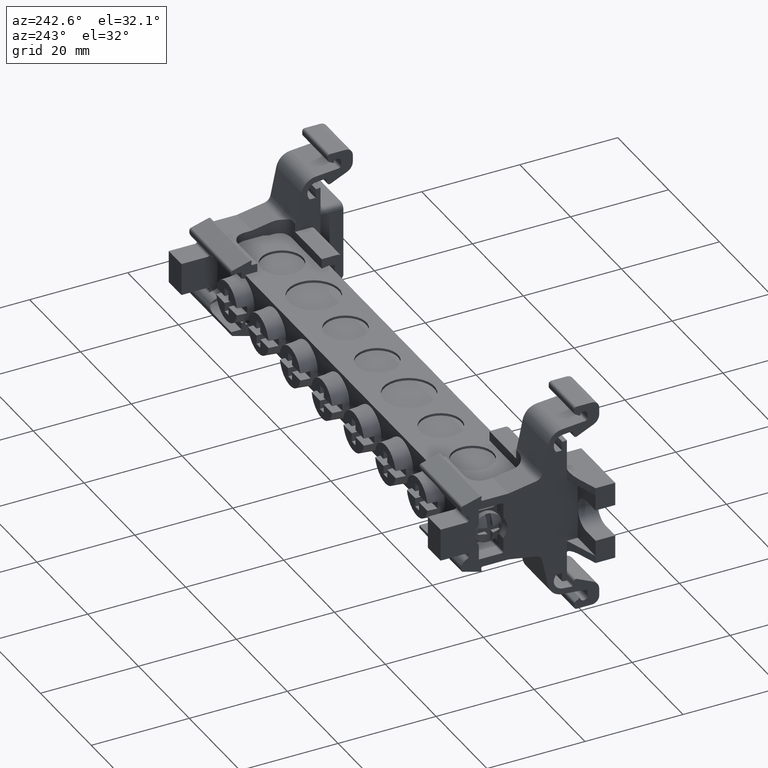
[diagram: clean part render]
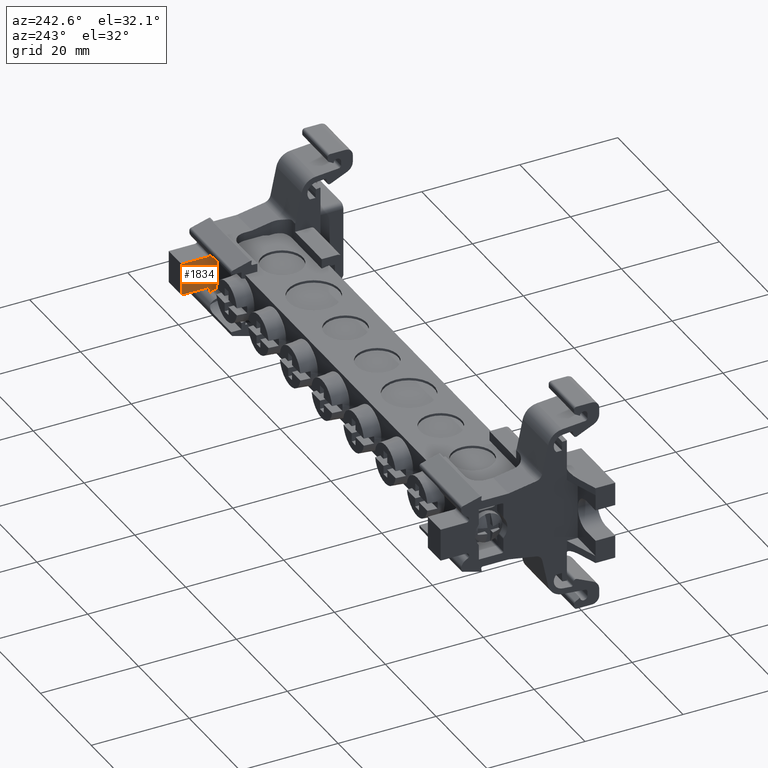
[diagram: same view with one face highlighted and labeled with its STEP entity id]
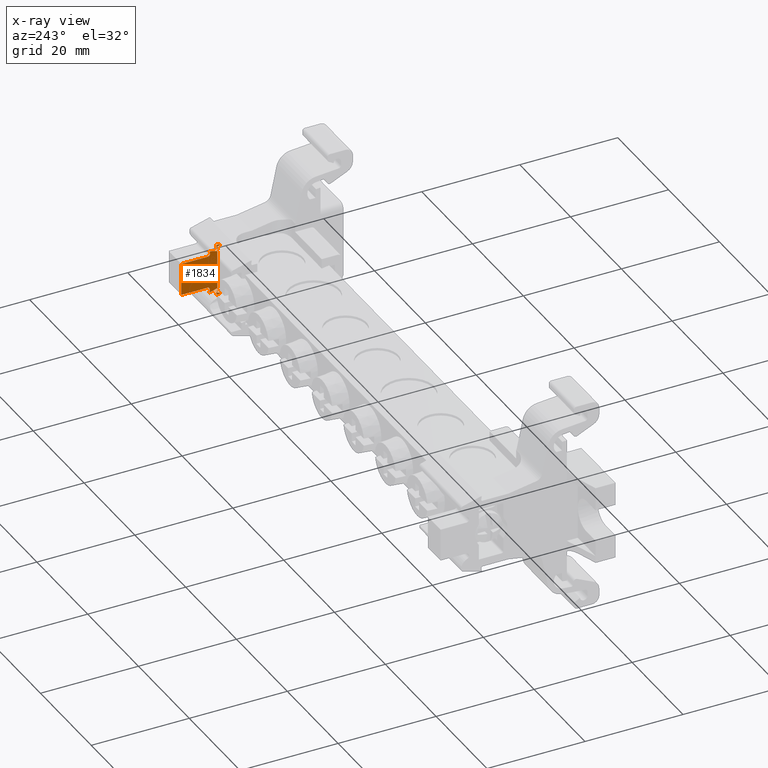
[diagram: x-ray of the same camera — body ghosted, the highlighted face saturated]
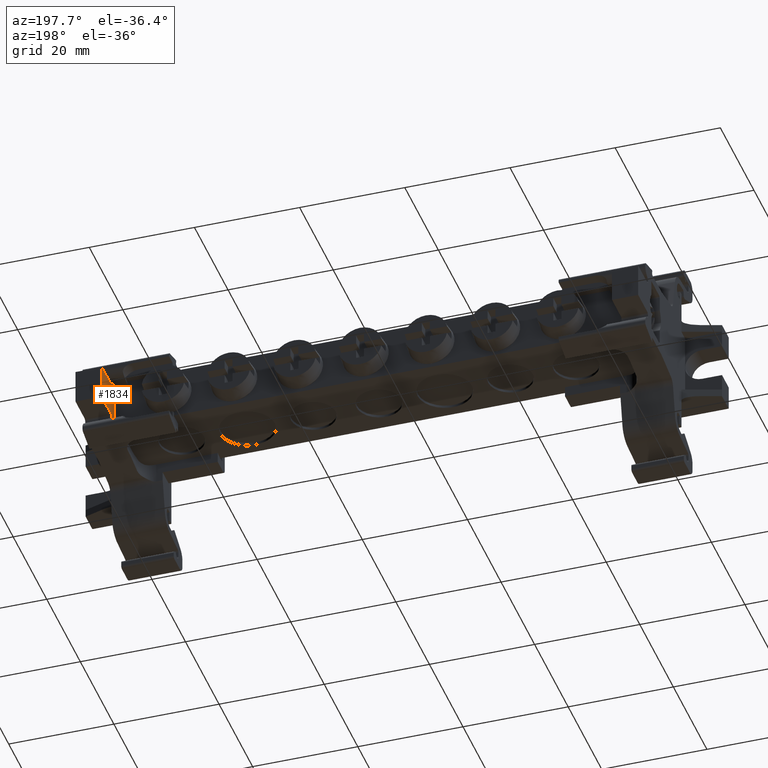
[diagram: same view with one face highlighted and labeled with its STEP entity id]
A machine part, auxiliary view. The second image highlights one B-rep face of the part: STEP entity #1834.
The next image is the same camera in x-ray: the body ghosted, the highlighted face saturated — about 0% of this face is hidden behind the body in this view.
A second angle (auxiliary view) of the same face is appended — the face is thin or edge-on in the first view.
In plain terms, the highlighted planar face has unit normal (-1, 0, -0).
Its self-contained STEP definition (entity closure, byte-faithful):
#8 = ORIENTED_EDGE ( 'NONE', *, *, #16091, .T. ) ;
#29 = ORIENTED_EDGE ( 'NONE', *, *, #15617, .T. ) ;
#30 = ORIENTED_EDGE ( 'NONE', *, *, #15684, .T. ) ;
#31 = ORIENTED_EDGE ( 'NONE', *, *, #15738, .F. ) ;
#32 = ORIENTED_EDGE ( 'NONE', *, *, #15988, .T. ) ;
#33 = ORIENTED_EDGE ( 'NONE', *, *, #16239, .F. ) ;
#38 = ORIENTED_EDGE ( 'NONE', *, *, #16112, .T. ) ;
#52 = ORIENTED_EDGE ( 'NONE', *, *, #16261, .F. ) ;
#53 = ORIENTED_EDGE ( 'NONE', *, *, #5288, .F. ) ;
#60 = ORIENTED_EDGE ( 'NONE', *, *, #16049, .T. ) ;
#61 = ORIENTED_EDGE ( 'NONE', *, *, #15916, .T. ) ;
#64 = ORIENTED_EDGE ( 'NONE', *, *, #7839, .F. ) ;
#65 = ORIENTED_EDGE ( 'NONE', *, *, #15941, .T. ) ;
#85 = ORIENTED_EDGE ( 'NONE', *, *, #1769, .T. ) ;
#92 = ORIENTED_EDGE ( 'NONE', *, *, #1951, .F. ) ;
#94 = ORIENTED_EDGE ( 'NONE', *, *, #1987, .F. ) ;
#95 = ORIENTED_EDGE ( 'NONE', *, *, #16065, .T. ) ;
#96 = ORIENTED_EDGE ( 'NONE', *, *, #15975, .T. ) ;
#104 = ORIENTED_EDGE ( 'NONE', *, *, #18571, .T. ) ;
#117 = ORIENTED_EDGE ( 'NONE', *, *, #18576, .T. ) ;
#118 = ORIENTED_EDGE ( 'NONE', *, *, #1741, .T. ) ;
#258 = AXIS2_PLACEMENT_3D ( 'NONE', #9246, #9212, #9252 ) ;
#352 = CIRCLE ( 'NONE', #369, 0.5000000000000004400 ) ;
#369 = AXIS2_PLACEMENT_3D ( 'NONE', #16446, #16426, #16413 ) ;
#420 = AXIS2_PLACEMENT_3D ( 'NONE', #16554, #16514, #16542 ) ;
#424 = CIRCLE ( 'NONE', #420, 0.5000000000000004400 ) ;
#432 = AXIS2_PLACEMENT_3D ( 'NONE', #16936, #16955, #16949 ) ;
#558 = CIRCLE ( 'NONE', #581, 2.000000000000001800 ) ;
#581 = AXIS2_PLACEMENT_3D ( 'NONE', #6048, #6054, #6053 ) ;
#655 = VECTOR ( 'NONE', #6148, 999.9999999999998900 ) ;
#1044 = CIRCLE ( 'NONE', #258, 2.000000000000001800 ) ;
#1741 = EDGE_CURVE ( 'NONE', #3039, #2836, #352, .T. ) ;
#1769 = EDGE_CURVE ( 'NONE', #2801, #3088, #424, .T. ) ;
#1834 = ADVANCED_FACE ( 'NONE', ( #16966 ), #16982, .T. ) ;
#1951 = EDGE_CURVE ( 'NONE', #2585, #3018, #558, .T. ) ;
#1987 = EDGE_CURVE ( 'NONE', #3078, #2632, #6137, .T. ) ;
#2582 = VERTEX_POINT ( 'NONE', #7097 ) ;
#2585 = VERTEX_POINT ( 'NONE', #7062 ) ;
#2632 = VERTEX_POINT ( 'NONE', #7085 ) ;
#2801 = VERTEX_POINT ( 'NONE', #8145 ) ;
#2836 = VERTEX_POINT ( 'NONE', #8142 ) ;
#3018 = VERTEX_POINT ( 'NONE', #8404 ) ;
#3039 = VERTEX_POINT ( 'NONE', #8378 ) ;
#3078 = VERTEX_POINT ( 'NONE', #8433 ) ;
#3088 = VERTEX_POINT ( 'NONE', #8473 ) ;
#3090 = VERTEX_POINT ( 'NONE', #8444 ) ;
#3102 = VERTEX_POINT ( 'NONE', #8463 ) ;
#3111 = VERTEX_POINT ( 'NONE', #8440 ) ;
#3165 = VERTEX_POINT ( 'NONE', #8495 ) ;
#3199 = VERTEX_POINT ( 'NONE', #8574 ) ;
#3206 = VERTEX_POINT ( 'NONE', #8553 ) ;
#3211 = VERTEX_POINT ( 'NONE', #8572 ) ;
#3212 = VERTEX_POINT ( 'NONE', #8569 ) ;
#3225 = VERTEX_POINT ( 'NONE', #8558 ) ;
#3231 = VERTEX_POINT ( 'NONE', #8582 ) ;
#3482 = VERTEX_POINT ( 'NONE', #8814 ) ;
#3502 = VERTEX_POINT ( 'NONE', #8855 ) ;
#3607 = VERTEX_POINT ( 'NONE', #8932 ) ;
#3978 = EDGE_LOOP ( 'NONE', ( #19203, #38, #8, #61, #95, #65, #64, #92, #30, #52, #85, #96, #32, #60, #118, #33, #29, #53, #31, #94, #104, #117 ) ) ;
#5288 = EDGE_CURVE ( 'NONE', #3482, #3502, #1044, .T. ) ;
#6048 = CARTESIAN_POINT ( 'NONE',  ( 40.04730230417598600, 63.53882648293326700, 44.42354422735452600 ) ) ;
#6053 = DIRECTION ( 'NONE',  ( 6.938893903907222100E-015, 1.000000000000000000, 2.081668171172166600E-014 ) ) ;
#6054 = DIRECTION ( 'NONE',  ( -1.000000000000000000, 7.897574987183420400E-015, -2.780833246023215000E-015 ) ) ;
#6133 = CARTESIAN_POINT ( 'NONE',  ( 40.04730230417603600, 62.51482648293306700, 33.55904998369311400 ) ) ;
#6137 = LINE ( 'NONE', #6133, #655 ) ;
#6148 = DIRECTION ( 'NONE',  ( -0.0000000000000000000, -0.1736481776670030200, 0.9848077530121953600 ) ) ;
#7062 = CARTESIAN_POINT ( 'NONE',  ( 40.04730230417600000, 64.24298665697077100, 42.55160447156657000 ) ) ;
#7085 = CARTESIAN_POINT ( 'NONE',  ( 40.04730230417601400, 62.41902670048018800, 34.10235754824123000 ) ) ;
#7097 = CARTESIAN_POINT ( 'NONE',  ( 40.04730230417600000, 63.91902670048021700, 42.08361953261959300 ) ) ;
#7839 = EDGE_CURVE ( 'NONE', #3018, #3102, #11599, .T. ) ;
#8142 = CARTESIAN_POINT ( 'NONE',  ( 40.04730230417605000, 63.91902670048021700, 34.26864998369332200 ) ) ;
#8145 = CARTESIAN_POINT ( 'NONE',  ( 40.04730230417600700, 63.91902670048021700, 41.88664998368990700 ) ) ;
#8378 = CARTESIAN_POINT ( 'NONE',  ( 40.04730230417605000, 64.41902670048013100, 34.76864998369365600 ) ) ;
#8404 = CARTESIAN_POINT ( 'NONE',  ( 40.04730230417600000, 64.05646457313778800, 42.49169257477618100 ) ) ;
#8433 = CARTESIAN_POINT ( 'NONE',  ( 40.04730230417603600, 62.65701656017648700, 32.75264998369322500 ) ) ;
#8440 = CARTESIAN_POINT ( 'NONE',  ( 40.04730230417602900, 61.91882648292986600, 32.75264998369307500 ) ) ;
#8444 = CARTESIAN_POINT ( 'NONE',  ( 40.04730230417569500, 61.91882648292984500, 33.07764998369308500 ) ) ;
#8463 = CARTESIAN_POINT ( 'NONE',  ( 40.04730230417596500, 62.41902670048016000, 42.05294241914198500 ) ) ;
#8473 = CARTESIAN_POINT ( 'NONE',  ( 40.04730230417600700, 64.41902670048017400, 41.38664998368982100 ) ) ;
#8495 = CARTESIAN_POINT ( 'NONE',  ( 40.04730230417602900, 69.74082521647748900, 34.76864998369400400 ) ) ;
#8553 = CARTESIAN_POINT ( 'NONE',  ( 40.04730230417575900, 61.91882648292984500, 43.07764998369307800 ) ) ;
#8558 = CARTESIAN_POINT ( 'NONE',  ( 40.04730230417595000, 62.41882648292838800, 43.07764998369307800 ) ) ;
#8569 = CARTESIAN_POINT ( 'NONE',  ( 40.04730230417595000, 62.65701656017640200, 43.40264998368984100 ) ) ;
#8572 = CARTESIAN_POINT ( 'NONE',  ( 40.04730230417594300, 61.91882648292978100, 43.40264998368984800 ) ) ;
#8574 = CARTESIAN_POINT ( 'NONE',  ( 40.04730230417600700, 69.74082521647748900, 41.38664998368942300 ) ) ;
#8582 = CARTESIAN_POINT ( 'NONE',  ( 40.04730230417598600, 62.41882648292838800, 33.07764998369308500 ) ) ;
#8814 = CARTESIAN_POINT ( 'NONE',  ( 40.04730230417603600, 64.05646457313777400, 33.66360739260702700 ) ) ;
#8855 = CARTESIAN_POINT ( 'NONE',  ( 40.04730230417605700, 64.24298665697080000, 33.60369549581661600 ) ) ;
#8932 = CARTESIAN_POINT ( 'NONE',  ( 40.04730230417605000, 63.91902670048021700, 34.07168043476360000 ) ) ;
#9212 = DIRECTION ( 'NONE',  ( -1.000000000000000000, 7.897574987183420400E-015, -4.241555170703030000E-015 ) ) ;
#9246 = CARTESIAN_POINT ( 'NONE',  ( 40.04730230417605700, 63.53882648293326700, 31.73175574002868500 ) ) ;
#9252 = DIRECTION ( 'NONE',  ( 6.938893903907222100E-015, 1.000000000000000000, 2.498001805406600200E-013 ) ) ;
#10311 = VECTOR ( 'NONE', #14676, 1000.000000000000000 ) ;
#10345 = VECTOR ( 'NONE', #14703, 1000.000000000000000 ) ;
#11599 = LINE ( 'NONE', #11626, #17959 ) ;
#11626 = CARTESIAN_POINT ( 'NONE',  ( 40.04730230417600000, 64.05646457313777400, 42.49169257477618100 ) ) ;
#11628 = DIRECTION ( 'NONE',  ( -0.0000000000000000000, -0.9659258262891364800, -0.2588190451022660500 ) ) ;
#12046 = DIRECTION ( 'NONE',  ( 1.000000000000000000, -7.897574987183420400E-015, 4.241555170703030000E-015 ) ) ;
#12050 = CARTESIAN_POINT ( 'NONE',  ( 40.04730230417605700, 64.41902670048016000, 34.07168043476357900 ) ) ;
#12051 = DIRECTION ( 'NONE',  ( 1.387778780781444400E-014, 1.000000000000000000, 0.0000000000000000000 ) ) ;
#12261 = CARTESIAN_POINT ( 'NONE',  ( 40.04730230417600000, 64.41902670048016000, 42.08361953261958600 ) ) ;
#12283 = DIRECTION ( 'NONE',  ( 1.000000000000000000, -7.897574987183420400E-015, 2.780833246023215000E-015 ) ) ;
#12285 = DIRECTION ( 'NONE',  ( 1.387778780781444400E-014, 1.000000000000000000, 0.0000000000000000000 ) ) ;
#12405 = LINE ( 'NONE', #12433, #18199 ) ;
#12425 = DIRECTION ( 'NONE',  ( -0.0000000000000000000, 0.9659258262891364800, -0.2588190451022660500 ) ) ;
#12433 = CARTESIAN_POINT ( 'NONE',  ( 40.04730230417601400, 64.05646457313777400, 33.66360739260702700 ) ) ;
#12919 = CARTESIAN_POINT ( 'NONE',  ( 40.04730230417599300, 62.41882648292838800, 33.07764998369308500 ) ) ;
#12923 = LINE ( 'NONE', #12919, #19262 ) ;
#12924 = DIRECTION ( 'NONE',  ( -7.897574987183420400E-015, -1.000000000000000000, 0.0000000000000000000 ) ) ;
#12926 = CARTESIAN_POINT ( 'NONE',  ( 40.04730230417603600, 70.57882648293222900, 34.76864998369400400 ) ) ;
#12933 = LINE ( 'NONE', #12926, #19235 ) ;
#12942 = DIRECTION ( 'NONE',  ( -0.0000000000000000000, -1.000000000000000000, -0.0000000000000000000 ) ) ;
#12963 = LINE ( 'NONE', #12974, #19230 ) ;
#12974 = CARTESIAN_POINT ( 'NONE',  ( 40.04730230417595000, 53.91882648293101700, 43.40264998368984800 ) ) ;
#12996 = DIRECTION ( 'NONE',  ( -3.999861650527207200E-044, 1.000000000000000000, 1.271406292971209800E-029 ) ) ;
#13135 = LINE ( 'NONE', #13146, #19277 ) ;
#13141 = DIRECTION ( 'NONE',  ( -7.897574987183420400E-015, -1.000000000000000000, 0.0000000000000000000 ) ) ;
#13146 = CARTESIAN_POINT ( 'NONE',  ( 40.04730230417600700, 70.57882648293222900, 43.07764998369307800 ) ) ;
#13156 = CARTESIAN_POINT ( 'NONE',  ( 40.04730230417599300, 62.41882648292838800, 43.07764998369307800 ) ) ;
#13184 = LINE ( 'NONE', #13156, #19309 ) ;
#13187 = DIRECTION ( 'NONE',  ( -0.0000000000000000000, 0.0000000000000000000, 1.000000000000000000 ) ) ;
#13529 = CARTESIAN_POINT ( 'NONE',  ( 40.04730230417596500, 61.91882648292983000, 36.75664998369448700 ) ) ;
#13560 = DIRECTION ( 'NONE',  ( -3.511194208363124900E-015, 2.772991955511190500E-029, 1.000000000000000000 ) ) ;
#13563 = LINE ( 'NONE', #13529, #18082 ) ;
#13576 = LINE ( 'NONE', #13593, #19601 ) ;
#13593 = CARTESIAN_POINT ( 'NONE',  ( 40.04730230417595000, 62.65701656017643000, 43.40264998369019600 ) ) ;
#13594 = DIRECTION ( 'NONE',  ( 0.0000000000000000000, -0.1736481776670367200, -0.9848077530121893700 ) ) ;
#13718 = CARTESIAN_POINT ( 'NONE',  ( 40.04730230417602100, 69.74082521647748900, 36.75664998369448700 ) ) ;
#13733 = LINE ( 'NONE', #13718, #19676 ) ;
#13740 = LINE ( 'NONE', #13747, #19604 ) ;
#13742 = DIRECTION ( 'NONE',  ( 7.897574987183420400E-015, 1.000000000000000000, -0.0000000000000000000 ) ) ;
#13747 = CARTESIAN_POINT ( 'NONE',  ( 40.04730230417601400, 70.57882648293222900, 41.38664998368974300 ) ) ;
#13761 = DIRECTION ( 'NONE',  ( 3.511194208363124900E-015, -2.772991955511190500E-029, -1.000000000000000000 ) ) ;
#14077 = DIRECTION ( 'NONE',  ( 2.447812761631542700E-043, 3.099448584665515300E-029, 1.000000000000000000 ) ) ;
#14097 = LINE ( 'NONE', #14100, #19463 ) ;
#14100 = CARTESIAN_POINT ( 'NONE',  ( 40.04730230417605000, 63.91902670048021700, 33.70043375959505700 ) ) ;
#14136 = DIRECTION ( 'NONE',  ( -2.471836676931409200E-043, -3.129867941669220200E-029, 1.000000000000000000 ) ) ;
#14144 = LINE ( 'NONE', #14150, #19450 ) ;
#14150 = CARTESIAN_POINT ( 'NONE',  ( 40.04730230417600700, 63.91902670048021700, 42.45486620778815700 ) ) ;
#14676 = DIRECTION ( 'NONE',  ( -2.630884200987044000E-043, -1.000000000000000000, 6.786970846989881900E-029 ) ) ;
#14690 = LINE ( 'NONE', #14701, #10345 ) ;
#14695 = LINE ( 'NONE', #14716, #10311 ) ;
#14701 = CARTESIAN_POINT ( 'NONE',  ( 40.04730230417602100, 61.91882648292985900, 32.75264998369295500 ) ) ;
#14703 = DIRECTION ( 'NONE',  ( 1.429276196835897900E-043, 1.809765908086214800E-029, 1.000000000000000000 ) ) ;
#14716 = CARTESIAN_POINT ( 'NONE',  ( 40.04730230417603600, 53.91882648293101700, 32.75264998369336700 ) ) ;
#15617 = EDGE_CURVE ( 'NONE', #3607, #3502, #18087, .T. ) ;
#15684 = EDGE_CURVE ( 'NONE', #2585, #2582, #18192, .T. ) ;
#15738 = EDGE_CURVE ( 'NONE', #2632, #3482, #12405, .T. ) ;
#15916 = EDGE_CURVE ( 'NONE', #3206, #3211, #13563, .T. ) ;
#15941 = EDGE_CURVE ( 'NONE', #3212, #3102, #13576, .T. ) ;
#15975 = EDGE_CURVE ( 'NONE', #3088, #3199, #13740, .T. ) ;
#15988 = EDGE_CURVE ( 'NONE', #3199, #3165, #13733, .T. ) ;
#16047 = EDGE_CURVE ( 'NONE', #3231, #3090, #12923, .T. ) ;
#16049 = EDGE_CURVE ( 'NONE', #3165, #3039, #12933, .T. ) ;
#16065 = EDGE_CURVE ( 'NONE', #3211, #3212, #12963, .T. ) ;
#16091 = EDGE_CURVE ( 'NONE', #3225, #3206, #13135, .T. ) ;
#16112 = EDGE_CURVE ( 'NONE', #3231, #3225, #13184, .T. ) ;
#16239 = EDGE_CURVE ( 'NONE', #3607, #2836, #14097, .T. ) ;
#16261 = EDGE_CURVE ( 'NONE', #2801, #2582, #14144, .T. ) ;
#16413 = DIRECTION ( 'NONE',  ( 1.387778780781444400E-014, 1.000000000000000000, 0.0000000000000000000 ) ) ;
#16426 = DIRECTION ( 'NONE',  ( 1.000000000000000000, -7.897574987183420400E-015, 4.229249905219660500E-015 ) ) ;
#16446 = CARTESIAN_POINT ( 'NONE',  ( 40.04730230417605000, 64.41902670048021700, 34.26864998369330100 ) ) ;
#16514 = DIRECTION ( 'NONE',  ( 1.000000000000000000, -7.897574987183420400E-015, 2.793138511506585200E-015 ) ) ;
#16542 = DIRECTION ( 'NONE',  ( 1.387778780781444400E-014, 1.000000000000000000, 0.0000000000000000000 ) ) ;
#16554 = CARTESIAN_POINT ( 'NONE',  ( 40.04730230417600700, 64.41902670048021700, 41.88664998368990700 ) ) ;
#16936 = CARTESIAN_POINT ( 'NONE',  ( 40.04730230417602900, 70.57882648293222900, 36.75664998369448700 ) ) ;
#16949 = DIRECTION ( 'NONE',  ( -7.897574987183420400E-015, -1.000000000000000000, 0.0000000000000000000 ) ) ;
#16955 = DIRECTION ( 'NONE',  ( -1.000000000000000000, 7.897574987183420400E-015, -3.511194208363124900E-015 ) ) ;
#16966 = FACE_OUTER_BOUND ( 'NONE', #3978, .T. ) ;
#16982 = PLANE ( 'NONE',  #432 ) ;
#17959 = VECTOR ( 'NONE', #11628, 1000.000000000000100 ) ;
#18082 = VECTOR ( 'NONE', #13560, 1000.000000000000000 ) ;
#18087 = CIRCLE ( 'NONE', #18107, 0.5000000000000004400 ) ;
#18107 = AXIS2_PLACEMENT_3D ( 'NONE', #12050, #12046, #12051 ) ;
#18172 = AXIS2_PLACEMENT_3D ( 'NONE', #12261, #12283, #12285 ) ;
#18192 = CIRCLE ( 'NONE', #18172, 0.5000000000000004400 ) ;
#18199 = VECTOR ( 'NONE', #12425, 1000.000000000000100 ) ;
#18571 = EDGE_CURVE ( 'NONE', #3078, #3111, #14695, .T. ) ;
#18576 = EDGE_CURVE ( 'NONE', #3111, #3090, #14690, .T. ) ;
#19203 = ORIENTED_EDGE ( 'NONE', *, *, #16047, .F. ) ;
#19230 = VECTOR ( 'NONE', #12996, 1000.000000000000000 ) ;
#19235 = VECTOR ( 'NONE', #12924, 1000.000000000000000 ) ;
#19262 = VECTOR ( 'NONE', #12942, 1000.000000000000000 ) ;
#19277 = VECTOR ( 'NONE', #13141, 1000.000000000000000 ) ;
#19309 = VECTOR ( 'NONE', #13187, 1000.000000000000000 ) ;
#19450 = VECTOR ( 'NONE', #14136, 1000.000000000000000 ) ;
#19463 = VECTOR ( 'NONE', #14077, 1000.000000000000000 ) ;
#19601 = VECTOR ( 'NONE', #13594, 1000.000000000000100 ) ;
#19604 = VECTOR ( 'NONE', #13742, 1000.000000000000000 ) ;
#19676 = VECTOR ( 'NONE', #13761, 1000.000000000000000 ) ;